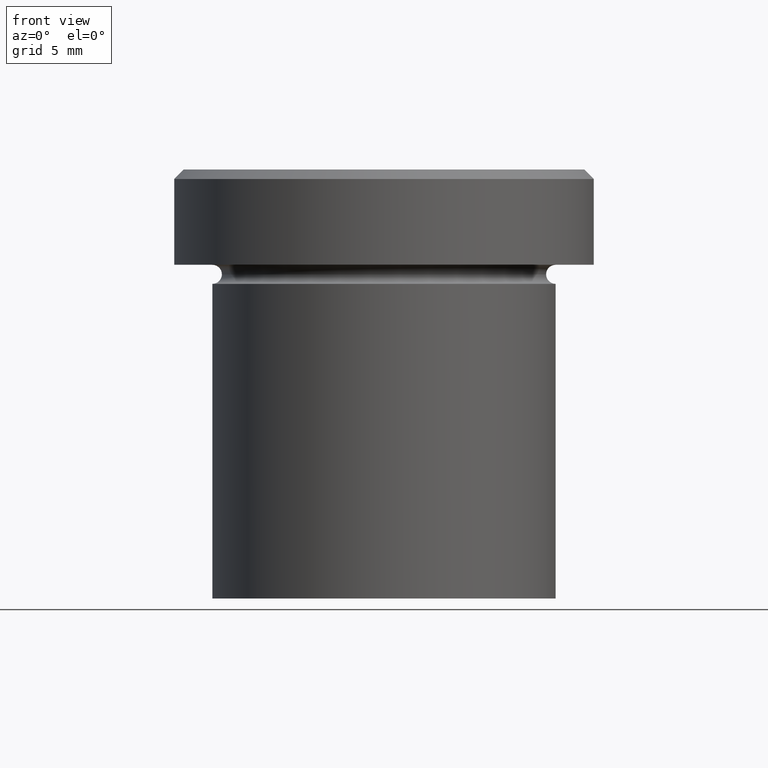
[diagram: clean part render]
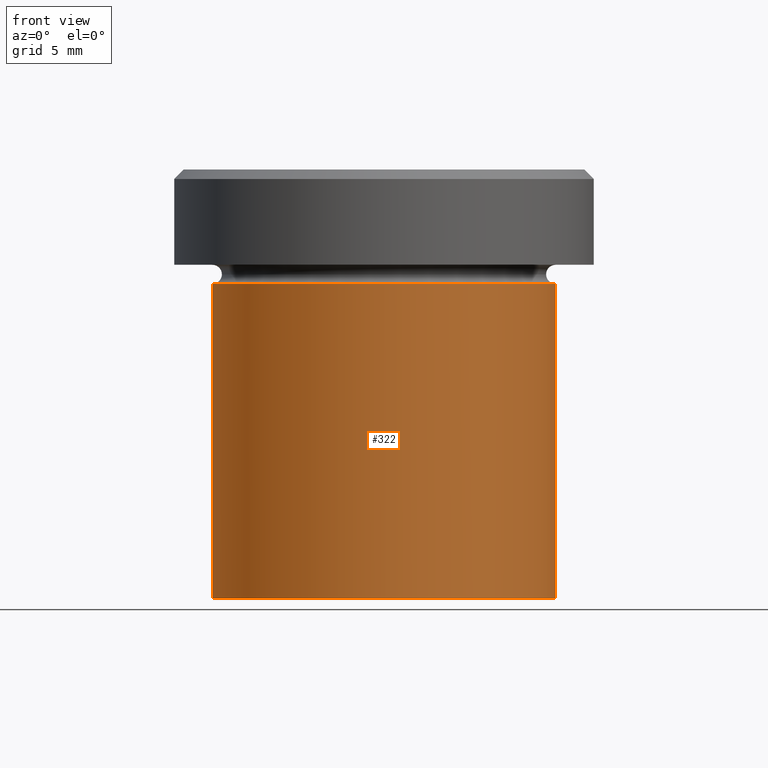
[diagram: same view with one face highlighted and labeled with its STEP entity id]
A machine part, front view. The second image highlights one B-rep face of the part: STEP entity #322.
In plain terms, the highlighted cylindrical surface (partial cylindrical patch) has radius 9 mm, axis along (-0, -0, 1).
Its self-contained STEP definition (entity closure, byte-faithful):
#4 = VERTEX_POINT ( 'NONE', #231 ) ;
#6 = CARTESIAN_POINT ( 'NONE',  ( 9.000000000000000000, 0.000000000000000000, -22.50000000000000000 ) ) ;
#7 = DIRECTION ( 'NONE',  ( -0.000000000000000000, -0.000000000000000000, 1.000000000000000000 ) ) ;
#10 = DIRECTION ( 'NONE',  ( 1.000000000000000000, 0.000000000000000000, 0.000000000000000000 ) ) ;
#15 = CARTESIAN_POINT ( 'NONE',  ( 9.000000000000000000, 0.000000000000000000, 0.000000000000000000 ) ) ;
#17 = ORIENTED_EDGE ( 'NONE', *, *, #164, .T. ) ;
#55 = EDGE_CURVE ( 'NONE', #288, #382, #407, .T. ) ;
#64 = CARTESIAN_POINT ( 'NONE',  ( -9.000000000000000000, 1.102182119232617714E-15, 0.000000000000000000 ) ) ;
#67 = VECTOR ( 'NONE', #364, 1000.000000000000000 ) ;
#82 = CARTESIAN_POINT ( 'NONE',  ( -9.000000000000000000, 1.102182119232617714E-15, -22.50000000000000000 ) ) ;
#86 = AXIS2_PLACEMENT_3D ( 'NONE', #260, #344, #349 ) ;
#108 = AXIS2_PLACEMENT_3D ( 'NONE', #385, #250, #10 ) ;
#142 = ORIENTED_EDGE ( 'NONE', *, *, #379, .F. ) ;
#147 = LINE ( 'NONE', #64, #155 ) ;
#155 = VECTOR ( 'NONE', #182, 1000.000000000000000 ) ;
#164 = EDGE_CURVE ( 'NONE', #382, #4, #292, .T. ) ;
#182 = DIRECTION ( 'NONE',  ( -0.000000000000000000, -0.000000000000000000, 1.000000000000000000 ) ) ;
#218 = FACE_OUTER_BOUND ( 'NONE', #300, .T. ) ;
#231 = CARTESIAN_POINT ( 'NONE',  ( 9.000000000000000000, 0.000000000000000000, -6.000000000000000000 ) ) ;
#237 = CARTESIAN_POINT ( 'NONE',  ( 0.000000000000000000, 0.000000000000000000, -22.50000000000000000 ) ) ;
#247 = ORIENTED_EDGE ( 'NONE', *, *, #281, .F. ) ;
#249 = AXIS2_PLACEMENT_3D ( 'NONE', #237, #7, #276 ) ;
#250 = DIRECTION ( 'NONE',  ( -0.000000000000000000, -0.000000000000000000, 1.000000000000000000 ) ) ;
#253 = CARTESIAN_POINT ( 'NONE',  ( -9.000000000000000000, 1.102182119232617714E-15, -6.000000000000000000 ) ) ;
#260 = CARTESIAN_POINT ( 'NONE',  ( 0.000000000000000000, 0.000000000000000000, 0.000000000000000000 ) ) ;
#275 = VERTEX_POINT ( 'NONE', #253 ) ;
#276 = DIRECTION ( 'NONE',  ( 1.000000000000000000, 0.000000000000000000, 0.000000000000000000 ) ) ;
#279 = CIRCLE ( 'NONE', #108, 9.000000000000000000 ) ;
#281 = EDGE_CURVE ( 'NONE', #275, #4, #279, .T. ) ;
#288 = VERTEX_POINT ( 'NONE', #82 ) ;
#292 = LINE ( 'NONE', #15, #67 ) ;
#300 = EDGE_LOOP ( 'NONE', ( #142, #368, #17, #247 ) ) ;
#322 = ADVANCED_FACE ( 'NONE', ( #218 ), #395, .T. ) ;
#344 = DIRECTION ( 'NONE',  ( -0.000000000000000000, -0.000000000000000000, 1.000000000000000000 ) ) ;
#349 = DIRECTION ( 'NONE',  ( 1.000000000000000000, 0.000000000000000000, 0.000000000000000000 ) ) ;
#364 = DIRECTION ( 'NONE',  ( -0.000000000000000000, -0.000000000000000000, 1.000000000000000000 ) ) ;
#368 = ORIENTED_EDGE ( 'NONE', *, *, #55, .T. ) ;
#379 = EDGE_CURVE ( 'NONE', #288, #275, #147, .T. ) ;
#382 = VERTEX_POINT ( 'NONE', #6 ) ;
#385 = CARTESIAN_POINT ( 'NONE',  ( 0.000000000000000000, 0.000000000000000000, -6.000000000000000000 ) ) ;
#395 = CYLINDRICAL_SURFACE ( 'NONE', #86, 9.000000000000000000 ) ;
#407 = CIRCLE ( 'NONE', #249, 9.000000000000000000 ) ;